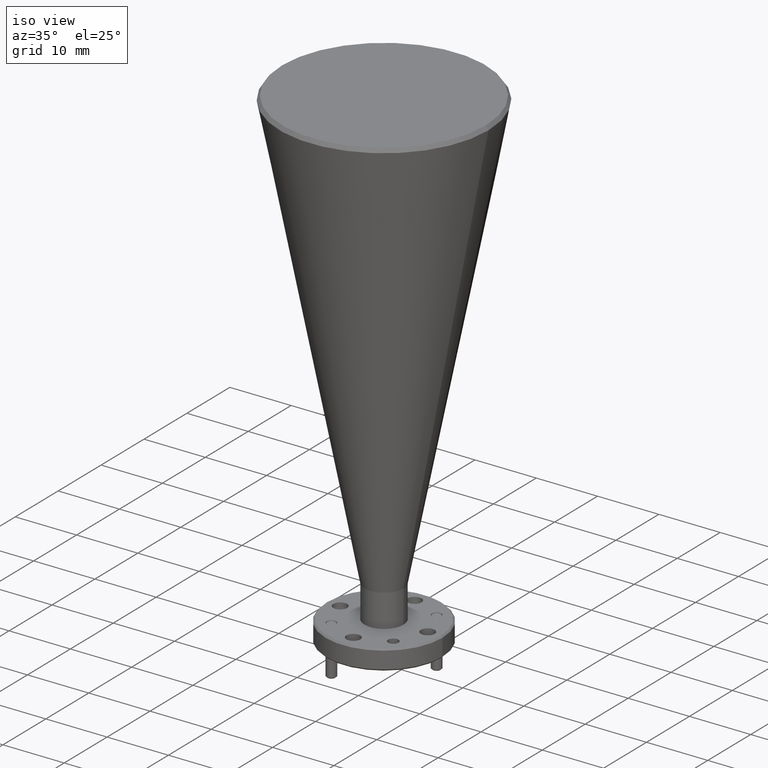
[diagram: clean part render]
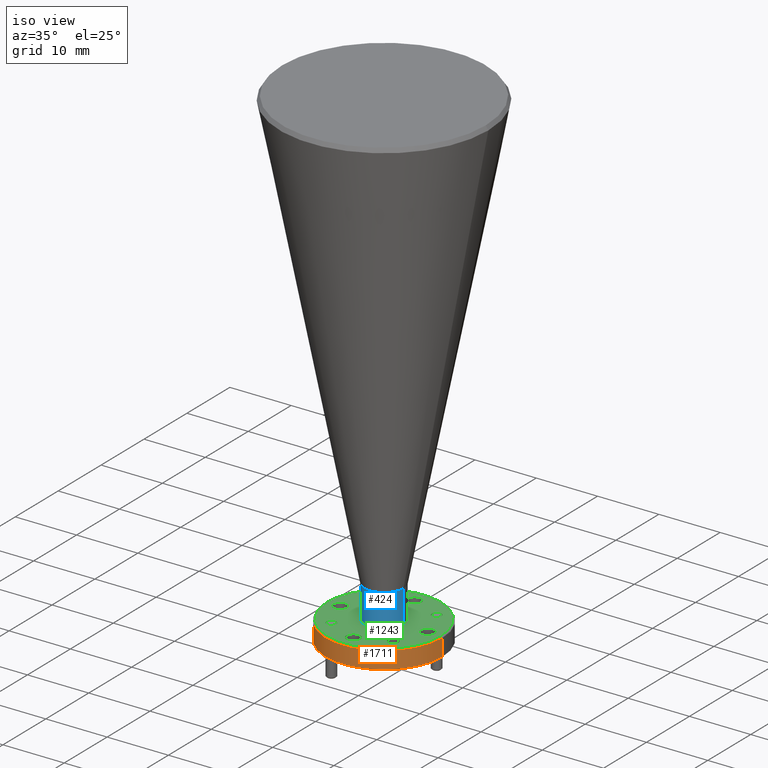
[diagram: same view with three faces highlighted in distinct colors, each labeled with its STEP entity id]
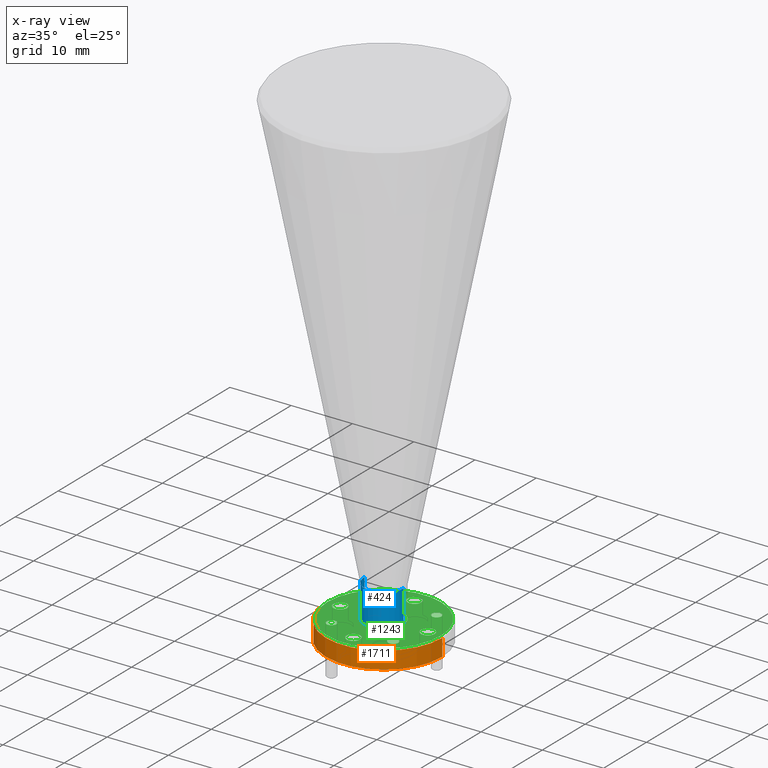
[diagram: x-ray of the same camera — body ghosted, the three highlighted faces saturated]
A machine part, iso view with three faces highlighted in distinct colors.
The next image is the same camera in x-ray (body ghosted, the three faces saturated) — at least one of them is partly hidden behind the body in this view.
Their STEP definitions:

[orange] entity #1711 — the highlighted cylindrical surface (partial cylindrical patch) has radius 9.525 mm, axis along (-0, -0, 1).
#64 = ORIENTED_EDGE ( 'NONE', *, *, #447, .T. ) ;
#85 = CARTESIAN_POINT ( 'NONE',  ( 0.8240414346720549300, 1.390276906475814300, -0.4061406525522079900 ) ) ;
#89 = AXIS2_PLACEMENT_3D ( 'NONE', #789, #1792, #1266 ) ;
#122 = CARTESIAN_POINT ( 'NONE',  ( 1.574041434672054800, 1.390276906475814300, 5.678405754474122900 ) ) ;
#166 = CARTESIAN_POINT ( 'NONE',  ( 1.574041434672054800, 1.390276906475814300, -0.5161406525522087600 ) ) ;
#168 = DIRECTION ( 'NONE',  ( -0.0000000000000000000, -0.0000000000000000000, 1.000000000000000000 ) ) ;
#174 = DIRECTION ( 'NONE',  ( -1.000000000000000000, 0.0000000000000000000, 0.0000000000000000000 ) ) ;
#200 = EDGE_CURVE ( 'NONE', #826, #555, #600, .T. ) ;
#221 = EDGE_CURVE ( 'NONE', #578, #2094, #323, .T. ) ;
#307 = CARTESIAN_POINT ( 'NONE',  ( 0.8240414346720549300, 1.390276906475814300, 5.678405754474122900 ) ) ;
#323 = LINE ( 'NONE', #307, #1478 ) ;
#396 = AXIS2_PLACEMENT_3D ( 'NONE', #965, #1289, #625 ) ;
#447 = EDGE_CURVE ( 'NONE', #578, #826, #1750, .T. ) ;
#555 = VERTEX_POINT ( 'NONE', #1328 ) ;
#578 = VERTEX_POINT ( 'NONE', #1311 ) ;
#600 = LINE ( 'NONE', #122, #1701 ) ;
#625 = DIRECTION ( 'NONE',  ( 1.000000000000000000, 0.0000000000000000000, 0.0000000000000000000 ) ) ;
#666 = CYLINDRICAL_SURFACE ( 'NONE', #89, 0.3749999999999999400 ) ;
#671 = AXIS2_PLACEMENT_3D ( 'NONE', #1134, #1608, #174 ) ;
#789 = CARTESIAN_POINT ( 'NONE',  ( 1.199041434672055000, 1.390276906475814300, 5.678405754474122900 ) ) ;
#822 = FACE_OUTER_BOUND ( 'NONE', #1214, .T. ) ;
#826 = VERTEX_POINT ( 'NONE', #166 ) ;
#879 = EDGE_CURVE ( 'NONE', #555, #2094, #1230, .T. ) ;
#925 = DIRECTION ( 'NONE',  ( -0.0000000000000000000, -0.0000000000000000000, 1.000000000000000000 ) ) ;
#932 = ORIENTED_EDGE ( 'NONE', *, *, #221, .F. ) ;
#965 = CARTESIAN_POINT ( 'NONE',  ( 1.199041434672055000, 1.390276906475814300, -0.5161406525522087600 ) ) ;
#1134 = CARTESIAN_POINT ( 'NONE',  ( 1.199041434672055000, 1.390276906475814300, -0.4061406525522079900 ) ) ;
#1212 = ORIENTED_EDGE ( 'NONE', *, *, #879, .T. ) ;
#1214 = EDGE_LOOP ( 'NONE', ( #932, #64, #1645, #1212 ) ) ;
#1230 = CIRCLE ( 'NONE', #671, 0.3749999999999999400 ) ;
#1266 = DIRECTION ( 'NONE',  ( 1.000000000000000000, 0.0000000000000000000, 0.0000000000000000000 ) ) ;
#1289 = DIRECTION ( 'NONE',  ( -0.0000000000000000000, -0.0000000000000000000, 1.000000000000000000 ) ) ;
#1311 = CARTESIAN_POINT ( 'NONE',  ( 0.8240414346720549300, 1.390276906475814300, -0.5161406525522087600 ) ) ;
#1328 = CARTESIAN_POINT ( 'NONE',  ( 1.574041434672054800, 1.390276906475814300, -0.4061406525522079900 ) ) ;
#1478 = VECTOR ( 'NONE', #168, 39.37007874015748100 ) ;
#1608 = DIRECTION ( 'NONE',  ( 0.0000000000000000000, 0.0000000000000000000, -1.000000000000000000 ) ) ;
#1645 = ORIENTED_EDGE ( 'NONE', *, *, #200, .T. ) ;
#1701 = VECTOR ( 'NONE', #925, 39.37007874015748100 ) ;
#1711 = ADVANCED_FACE ( 'NONE', ( #822 ), #666, .T. ) ;
#1750 = CIRCLE ( 'NONE', #396, 0.3749999999999999400 ) ;
#1792 = DIRECTION ( 'NONE',  ( -0.0000000000000000000, -0.0000000000000000000, 1.000000000000000000 ) ) ;
#2094 = VERTEX_POINT ( 'NONE', #85 ) ;

[blue] entity #424 — the highlighted cylindrical surface (edge-blend (fillet) strip) has radius 3.175 mm, axis along (-0, -0, 1).
#24 = CARTESIAN_POINT ( 'NONE',  ( 1.324041434672054800, 1.390276906475814300, 5.678405754474122900 ) ) ;
#54 = ORIENTED_EDGE ( 'NONE', *, *, #1394, .T. ) ;
#67 = DIRECTION ( 'NONE',  ( 1.000000000000000000, 0.0000000000000000000, 0.0000000000000000000 ) ) ;
#99 = CIRCLE ( 'NONE', #1849, 0.1249999999999999000 ) ;
#338 = DIRECTION ( 'NONE',  ( 1.000000000000000000, 0.0000000000000000000, 0.0000000000000000000 ) ) ;
#341 = CARTESIAN_POINT ( 'NONE',  ( 1.074041434672054800, 1.390276906475814300, -0.3961406525522088700 ) ) ;
#424 = ADVANCED_FACE ( 'NONE', ( #442 ), #1003, .T. ) ;
#438 = CARTESIAN_POINT ( 'NONE',  ( 1.199041434672055000, 1.390276906475814300, -0.1856453613359826100 ) ) ;
#442 = FACE_OUTER_BOUND ( 'NONE', #1088, .T. ) ;
#468 = VERTEX_POINT ( 'NONE', #1967 ) ;
#593 = ORIENTED_EDGE ( 'NONE', *, *, #1181, .F. ) ;
#608 = VERTEX_POINT ( 'NONE', #341 ) ;
#657 = CARTESIAN_POINT ( 'NONE',  ( 1.324041434672054800, 1.390276906475814300, -0.1856453613359826100 ) ) ;
#705 = DIRECTION ( 'NONE',  ( -0.0000000000000000000, -0.0000000000000000000, 1.000000000000000000 ) ) ;
#760 = EDGE_CURVE ( 'NONE', #608, #1899, #1030, .T. ) ;
#806 = VECTOR ( 'NONE', #1924, 39.37007874015748100 ) ;
#845 = VECTOR ( 'NONE', #1156, 39.37007874015748100 ) ;
#981 = AXIS2_PLACEMENT_3D ( 'NONE', #1686, #705, #67 ) ;
#1003 = CYLINDRICAL_SURFACE ( 'NONE', #981, 0.1249999999999999000 ) ;
#1030 = LINE ( 'NONE', #1418, #806 ) ;
#1049 = CIRCLE ( 'NONE', #1659, 0.1249999999999999000 ) ;
#1088 = EDGE_LOOP ( 'NONE', ( #1762, #54, #1111, #593 ) ) ;
#1111 = ORIENTED_EDGE ( 'NONE', *, *, #1877, .T. ) ;
#1156 = DIRECTION ( 'NONE',  ( -0.0000000000000000000, -0.0000000000000000000, 1.000000000000000000 ) ) ;
#1181 = EDGE_CURVE ( 'NONE', #1899, #1895, #1049, .T. ) ;
#1394 = EDGE_CURVE ( 'NONE', #608, #468, #99, .T. ) ;
#1418 = CARTESIAN_POINT ( 'NONE',  ( 1.074041434672054800, 1.390276906475814300, 5.678405754474122900 ) ) ;
#1577 = DIRECTION ( 'NONE',  ( -0.0000000000000000000, -0.0000000000000000000, 1.000000000000000000 ) ) ;
#1633 = DIRECTION ( 'NONE',  ( -0.0000000000000000000, -0.0000000000000000000, 1.000000000000000000 ) ) ;
#1659 = AXIS2_PLACEMENT_3D ( 'NONE', #438, #1577, #1753 ) ;
#1686 = CARTESIAN_POINT ( 'NONE',  ( 1.199041434672055000, 1.390276906475814300, 5.678405754474122900 ) ) ;
#1713 = LINE ( 'NONE', #24, #845 ) ;
#1753 = DIRECTION ( 'NONE',  ( 1.000000000000000000, 0.0000000000000000000, 0.0000000000000000000 ) ) ;
#1762 = ORIENTED_EDGE ( 'NONE', *, *, #760, .F. ) ;
#1767 = CARTESIAN_POINT ( 'NONE',  ( 1.199041434672055000, 1.390276906475814300, -0.3961406525522088700 ) ) ;
#1822 = CARTESIAN_POINT ( 'NONE',  ( 1.074041434672054800, 1.390276906475814300, -0.1856453613359826100 ) ) ;
#1849 = AXIS2_PLACEMENT_3D ( 'NONE', #1767, #1633, #338 ) ;
#1877 = EDGE_CURVE ( 'NONE', #468, #1895, #1713, .T. ) ;
#1895 = VERTEX_POINT ( 'NONE', #657 ) ;
#1899 = VERTEX_POINT ( 'NONE', #1822 ) ;
#1924 = DIRECTION ( 'NONE',  ( -0.0000000000000000000, -0.0000000000000000000, 1.000000000000000000 ) ) ;
#1967 = CARTESIAN_POINT ( 'NONE',  ( 1.324041434672054800, 1.390276906475814300, -0.3961406525522088700 ) ) ;

[green] entity #1243 — the highlighted planar face has unit normal (0, 0, -1).
#2 = CARTESIAN_POINT ( 'NONE',  ( 1.199041434672055000, 1.109026906475814300, -0.3961406525522088700 ) ) ;
#4 = VERTEX_POINT ( 'NONE', #2055 ) ;
#14 = ORIENTED_EDGE ( 'NONE', *, *, #1326, .T. ) ;
#42 = CARTESIAN_POINT ( 'NONE',  ( 1.480291434672055000, 1.390276906475814300, -0.3961406525522088700 ) ) ;
#77 = CIRCLE ( 'NONE', #317, 0.03350000000000006400 ) ;
#83 = EDGE_LOOP ( 'NONE', ( #1604, #228 ) ) ;
#84 = VERTEX_POINT ( 'NONE', #819 ) ;
#95 = CARTESIAN_POINT ( 'NONE',  ( 1.367165216880771500, 1.589150688684530800, -0.3961406525522088700 ) ) ;
#99 = CIRCLE ( 'NONE', #1849, 0.1249999999999999000 ) ;
#132 = PLANE ( 'NONE',  #642 ) ;
#178 = DIRECTION ( 'NONE',  ( 0.0000000000000000000, 0.0000000000000000000, -1.000000000000000000 ) ) ;
#212 = CARTESIAN_POINT ( 'NONE',  ( 1.564041434672055500, 1.390276906475814300, -0.3961406525522088700 ) ) ;
#214 = ORIENTED_EDGE ( 'NONE', *, *, #1587, .T. ) ;
#217 = CARTESIAN_POINT ( 'NONE',  ( 0.9622914346720546900, 1.390276906475814300, -0.3961406525522088700 ) ) ;
#228 = ORIENTED_EDGE ( 'NONE', *, *, #917, .T. ) ;
#232 = AXIS2_PLACEMENT_3D ( 'NONE', #1333, #2009, #1002 ) ;
#236 = CARTESIAN_POINT ( 'NONE',  ( 0.8340414346720542700, 1.390276906475814300, -0.3961406525522088700 ) ) ;
#244 = FACE_BOUND ( 'NONE', #758, .T. ) ;
#256 = VERTEX_POINT ( 'NONE', #1467 ) ;
#257 = VERTEX_POINT ( 'NONE', #1136 ) ;
#264 = AXIS2_PLACEMENT_3D ( 'NONE', #1571, #1925, #312 ) ;
#288 = CIRCLE ( 'NONE', #1860, 0.03074999999999993700 ) ;
#297 = FACE_OUTER_BOUND ( 'NONE', #787, .T. ) ;
#312 = DIRECTION ( 'NONE',  ( -1.000000000000000000, 0.0000000000000000000, 0.0000000000000000000 ) ) ;
#317 = AXIS2_PLACEMENT_3D ( 'NONE', #1454, #1955, #1770 ) ;
#337 = CIRCLE ( 'NONE', #1063, 0.04449999999999975500 ) ;
#338 = DIRECTION ( 'NONE',  ( 1.000000000000000000, 0.0000000000000000000, 0.0000000000000000000 ) ) ;
#341 = CARTESIAN_POINT ( 'NONE',  ( 1.074041434672054800, 1.390276906475814300, -0.3961406525522088700 ) ) ;
#360 = CARTESIAN_POINT ( 'NONE',  ( 1.480291434672055000, 1.390276906475814300, -0.3961406525522088700 ) ) ;
#364 = CARTESIAN_POINT ( 'NONE',  ( 1.435791434672055300, 1.390276906475814300, -0.3961406525522088700 ) ) ;
#365 = AXIS2_PLACEMENT_3D ( 'NONE', #1363, #1844, #694 ) ;
#380 = EDGE_CURVE ( 'NONE', #1153, #1984, #1572, .T. ) ;
#386 = CARTESIAN_POINT ( 'NONE',  ( 1.243541434672054800, 1.109026906475814300, -0.3961406525522088700 ) ) ;
#393 = CARTESIAN_POINT ( 'NONE',  ( 0.9694176524633384400, 1.191403124267097700, -0.3961406525522088700 ) ) ;
#395 = CIRCLE ( 'NONE', #1441, 0.04449999999999975500 ) ;
#404 = DIRECTION ( 'NONE',  ( -1.000000000000000000, 0.0000000000000000000, 0.0000000000000000000 ) ) ;
#408 = EDGE_CURVE ( 'NONE', #257, #256, #543, .T. ) ;
#412 = AXIS2_PLACEMENT_3D ( 'NONE', #934, #482, #1763 ) ;
#416 = ORIENTED_EDGE ( 'NONE', *, *, #1926, .F. ) ;
#441 = EDGE_CURVE ( 'NONE', #1984, #1153, #1859, .T. ) ;
#457 = DIRECTION ( 'NONE',  ( 0.0000000000000000000, 0.0000000000000000000, -1.000000000000000000 ) ) ;
#464 = DIRECTION ( 'NONE',  ( -1.000000000000000000, 0.0000000000000000000, 0.0000000000000000000 ) ) ;
#468 = VERTEX_POINT ( 'NONE', #1967 ) ;
#477 = ORIENTED_EDGE ( 'NONE', *, *, #408, .T. ) ;
#482 = DIRECTION ( 'NONE',  ( 0.0000000000000000000, 0.0000000000000000000, -1.000000000000000000 ) ) ;
#501 = ORIENTED_EDGE ( 'NONE', *, *, #1127, .T. ) ;
#514 = DIRECTION ( 'NONE',  ( 0.0000000000000000000, 0.0000000000000000000, -1.000000000000000000 ) ) ;
#529 = EDGE_LOOP ( 'NONE', ( #1295, #14 ) ) ;
#541 = CIRCLE ( 'NONE', #2102, 0.04449999999999975500 ) ;
#543 = CIRCLE ( 'NONE', #264, 0.03350000000000006400 ) ;
#579 = EDGE_LOOP ( 'NONE', ( #1583, #1480 ) ) ;
#594 = CIRCLE ( 'NONE', #1916, 0.03349999999999993300 ) ;
#606 = ORIENTED_EDGE ( 'NONE', *, *, #847, .T. ) ;
#608 = VERTEX_POINT ( 'NONE', #341 ) ;
#639 = CARTESIAN_POINT ( 'NONE',  ( 1.243541434672054800, 1.671526906475814300, -0.3961406525522088700 ) ) ;
#642 = AXIS2_PLACEMENT_3D ( 'NONE', #1259, #748, #1401 ) ;
#646 = FACE_BOUND ( 'NONE', #733, .T. ) ;
#648 = DIRECTION ( 'NONE',  ( -1.000000000000000000, 0.0000000000000000000, 0.0000000000000000000 ) ) ;
#658 = VERTEX_POINT ( 'NONE', #1900 ) ;
#667 = EDGE_CURVE ( 'NONE', #1319, #877, #1500, .T. ) ;
#674 = FACE_BOUND ( 'NONE', #579, .T. ) ;
#683 = ORIENTED_EDGE ( 'NONE', *, *, #1765, .T. ) ;
#690 = CARTESIAN_POINT ( 'NONE',  ( 1.000167652463338300, 1.191403124267097700, -0.3961406525522088700 ) ) ;
#694 = DIRECTION ( 'NONE',  ( -1.000000000000000000, 0.0000000000000000000, 0.0000000000000000000 ) ) ;
#701 = AXIS2_PLACEMENT_3D ( 'NONE', #690, #178, #1838 ) ;
#733 = EDGE_LOOP ( 'NONE', ( #1513, #1005 ) ) ;
#734 = DIRECTION ( 'NONE',  ( -1.000000000000000000, 0.0000000000000000000, 0.0000000000000000000 ) ) ;
#743 = CARTESIAN_POINT ( 'NONE',  ( 1.030917652463338300, 1.191403124267097700, -0.3961406525522088700 ) ) ;
#748 = DIRECTION ( 'NONE',  ( 0.0000000000000000000, 0.0000000000000000000, -1.000000000000000000 ) ) ;
#758 = EDGE_LOOP ( 'NONE', ( #501, #839 ) ) ;
#777 = FACE_BOUND ( 'NONE', #1893, .T. ) ;
#783 = CARTESIAN_POINT ( 'NONE',  ( 1.524791434672054800, 1.390276906475814300, -0.3961406525522088700 ) ) ;
#787 = EDGE_LOOP ( 'NONE', ( #810, #861 ) ) ;
#810 = ORIENTED_EDGE ( 'NONE', *, *, #380, .T. ) ;
#819 = CARTESIAN_POINT ( 'NONE',  ( 0.8732914346720551700, 1.390276906475814300, -0.3961406525522088700 ) ) ;
#821 = DIRECTION ( 'NONE',  ( -0.0000000000000000000, -0.0000000000000000000, 1.000000000000000000 ) ) ;
#824 = AXIS2_PLACEMENT_3D ( 'NONE', #2, #1483, #1157 ) ;
#839 = ORIENTED_EDGE ( 'NONE', *, *, #2007, .T. ) ;
#847 = EDGE_CURVE ( 'NONE', #256, #257, #77, .T. ) ;
#848 = DIRECTION ( 'NONE',  ( 0.0000000000000000000, 0.0000000000000000000, -1.000000000000000000 ) ) ;
#860 = DIRECTION ( 'NONE',  ( 0.0000000000000000000, 0.0000000000000000000, -1.000000000000000000 ) ) ;
#861 = ORIENTED_EDGE ( 'NONE', *, *, #441, .T. ) ;
#877 = VERTEX_POINT ( 'NONE', #639 ) ;
#891 = CARTESIAN_POINT ( 'NONE',  ( 1.199041434672055000, 1.671526906475814300, -0.3961406525522088700 ) ) ;
#895 = VERTEX_POINT ( 'NONE', #783 ) ;
#917 = EDGE_CURVE ( 'NONE', #1086, #1898, #1942, .T. ) ;
#934 = CARTESIAN_POINT ( 'NONE',  ( 1.000167652463338300, 1.589150688684530800, -0.3961406525522088700 ) ) ;
#1002 = DIRECTION ( 'NONE',  ( -1.000000000000000000, 0.0000000000000000000, 0.0000000000000000000 ) ) ;
#1005 = ORIENTED_EDGE ( 'NONE', *, *, #1852, .T. ) ;
#1032 = EDGE_CURVE ( 'NONE', #1642, #895, #2040, .T. ) ;
#1033 = CARTESIAN_POINT ( 'NONE',  ( 0.9177914346720549300, 1.390276906475814300, -0.3961406525522088700 ) ) ;
#1063 = AXIS2_PLACEMENT_3D ( 'NONE', #42, #1314, #1628 ) ;
#1073 = VERTEX_POINT ( 'NONE', #95 ) ;
#1086 = VERTEX_POINT ( 'NONE', #386 ) ;
#1114 = VERTEX_POINT ( 'NONE', #743 ) ;
#1117 = CARTESIAN_POINT ( 'NONE',  ( 1.000167652463338300, 1.589150688684530800, -0.3961406525522088700 ) ) ;
#1127 = EDGE_CURVE ( 'NONE', #84, #1627, #395, .T. ) ;
#1131 = CARTESIAN_POINT ( 'NONE',  ( 1.154541434672055300, 1.671526906475814300, -0.3961406525522088700 ) ) ;
#1135 = AXIS2_PLACEMENT_3D ( 'NONE', #1448, #457, #464 ) ;
#1136 = CARTESIAN_POINT ( 'NONE',  ( 1.431415216880771400, 1.191403124267097700, -0.3961406525522088700 ) ) ;
#1152 = CIRCLE ( 'NONE', #1644, 0.04449999999999975500 ) ;
#1153 = VERTEX_POINT ( 'NONE', #236 ) ;
#1157 = DIRECTION ( 'NONE',  ( -1.000000000000000000, 0.0000000000000000000, 0.0000000000000000000 ) ) ;
#1169 = DIRECTION ( 'NONE',  ( -1.000000000000000000, 0.0000000000000000000, 0.0000000000000000000 ) ) ;
#1170 = VERTEX_POINT ( 'NONE', #393 ) ;
#1182 = CARTESIAN_POINT ( 'NONE',  ( 1.428665216880771400, 1.589150688684530800, -0.3961406525522088700 ) ) ;
#1196 = DIRECTION ( 'NONE',  ( 0.0000000000000000000, 0.0000000000000000000, -1.000000000000000000 ) ) ;
#1223 = DIRECTION ( 'NONE',  ( 0.0000000000000000000, 0.0000000000000000000, -1.000000000000000000 ) ) ;
#1243 = ADVANCED_FACE ( 'NONE', ( #297, #1646, #1989, #777, #1570, #674, #244, #1255, #646, #1881 ), #132, .F. ) ;
#1255 = FACE_BOUND ( 'NONE', #83, .T. ) ;
#1259 = CARTESIAN_POINT ( 'NONE',  ( 1.199041434672055000, 1.515276906475814300, -0.3961406525522088700 ) ) ;
#1262 = EDGE_CURVE ( 'NONE', #877, #1319, #541, .T. ) ;
#1269 = DIRECTION ( 'NONE',  ( -1.000000000000000000, 0.0000000000000000000, 0.0000000000000000000 ) ) ;
#1295 = ORIENTED_EDGE ( 'NONE', *, *, #2021, .T. ) ;
#1296 = EDGE_CURVE ( 'NONE', #1898, #1086, #1152, .T. ) ;
#1304 = CIRCLE ( 'NONE', #2015, 0.1249999999999999000 ) ;
#1309 = CIRCLE ( 'NONE', #701, 0.03074999999999993700 ) ;
#1314 = DIRECTION ( 'NONE',  ( 0.0000000000000000000, 0.0000000000000000000, -1.000000000000000000 ) ) ;
#1319 = VERTEX_POINT ( 'NONE', #1131 ) ;
#1320 = ORIENTED_EDGE ( 'NONE', *, *, #1380, .T. ) ;
#1321 = CARTESIAN_POINT ( 'NONE',  ( 1.154541434672055300, 1.109026906475814300, -0.3961406525522088700 ) ) ;
#1326 = EDGE_CURVE ( 'NONE', #1580, #1073, #1805, .T. ) ;
#1333 = CARTESIAN_POINT ( 'NONE',  ( 1.000167652463338300, 1.191403124267097700, -0.3961406525522088700 ) ) ;
#1352 = AXIS2_PLACEMENT_3D ( 'NONE', #1520, #848, #1529 ) ;
#1363 = CARTESIAN_POINT ( 'NONE',  ( 1.199041434672055000, 1.390276906475814300, -0.3961406525522088700 ) ) ;
#1365 = DIRECTION ( 'NONE',  ( -1.000000000000000000, 0.0000000000000000000, 0.0000000000000000000 ) ) ;
#1380 = EDGE_CURVE ( 'NONE', #658, #4, #594, .T. ) ;
#1391 = CARTESIAN_POINT ( 'NONE',  ( 1.199041434672055000, 1.390276906475814300, -0.3961406525522088700 ) ) ;
#1394 = EDGE_CURVE ( 'NONE', #608, #468, #99, .T. ) ;
#1401 = DIRECTION ( 'NONE',  ( -1.000000000000000000, 0.0000000000000000000, -0.0000000000000000000 ) ) ;
#1409 = CIRCLE ( 'NONE', #412, 0.03349999999999993300 ) ;
#1440 = DIRECTION ( 'NONE',  ( 0.0000000000000000000, 0.0000000000000000000, -1.000000000000000000 ) ) ;
#1441 = AXIS2_PLACEMENT_3D ( 'NONE', #1033, #1196, #1709 ) ;
#1448 = CARTESIAN_POINT ( 'NONE',  ( 1.397915216880771600, 1.589150688684530800, -0.3961406525522088700 ) ) ;
#1454 = CARTESIAN_POINT ( 'NONE',  ( 1.397915216880771600, 1.191403124267097700, -0.3961406525522088700 ) ) ;
#1467 = CARTESIAN_POINT ( 'NONE',  ( 1.364415216880771500, 1.191403124267097700, -0.3961406525522088700 ) ) ;
#1477 = CARTESIAN_POINT ( 'NONE',  ( 1.199041434672055000, 1.390276906475814300, -0.3961406525522088700 ) ) ;
#1480 = ORIENTED_EDGE ( 'NONE', *, *, #1262, .T. ) ;
#1483 = DIRECTION ( 'NONE',  ( 0.0000000000000000000, 0.0000000000000000000, -1.000000000000000000 ) ) ;
#1491 = EDGE_CURVE ( 'NONE', #1170, #1114, #1309, .T. ) ;
#1492 = AXIS2_PLACEMENT_3D ( 'NONE', #1391, #2059, #734 ) ;
#1500 = CIRCLE ( 'NONE', #1856, 0.04449999999999975500 ) ;
#1513 = ORIENTED_EDGE ( 'NONE', *, *, #1032, .T. ) ;
#1520 = CARTESIAN_POINT ( 'NONE',  ( 0.9177914346720549300, 1.390276906475814300, -0.3961406525522088700 ) ) ;
#1523 = ORIENTED_EDGE ( 'NONE', *, *, #1394, .F. ) ;
#1529 = DIRECTION ( 'NONE',  ( -1.000000000000000000, 0.0000000000000000000, 0.0000000000000000000 ) ) ;
#1543 = EDGE_LOOP ( 'NONE', ( #606, #477 ) ) ;
#1554 = EDGE_LOOP ( 'NONE', ( #416, #1523 ) ) ;
#1570 = FACE_BOUND ( 'NONE', #1543, .T. ) ;
#1571 = CARTESIAN_POINT ( 'NONE',  ( 1.397915216880771600, 1.191403124267097700, -0.3961406525522088700 ) ) ;
#1572 = CIRCLE ( 'NONE', #1492, 0.3650000000000006000 ) ;
#1580 = VERTEX_POINT ( 'NONE', #1182 ) ;
#1583 = ORIENTED_EDGE ( 'NONE', *, *, #667, .T. ) ;
#1587 = EDGE_CURVE ( 'NONE', #1114, #1170, #1690, .T. ) ;
#1593 = DIRECTION ( 'NONE',  ( -1.000000000000000000, 0.0000000000000000000, 0.0000000000000000000 ) ) ;
#1604 = ORIENTED_EDGE ( 'NONE', *, *, #1296, .T. ) ;
#1615 = DIRECTION ( 'NONE',  ( 0.0000000000000000000, 0.0000000000000000000, -1.000000000000000000 ) ) ;
#1627 = VERTEX_POINT ( 'NONE', #217 ) ;
#1628 = DIRECTION ( 'NONE',  ( -1.000000000000000000, 0.0000000000000000000, 0.0000000000000000000 ) ) ;
#1633 = DIRECTION ( 'NONE',  ( -0.0000000000000000000, -0.0000000000000000000, 1.000000000000000000 ) ) ;
#1642 = VERTEX_POINT ( 'NONE', #364 ) ;
#1644 = AXIS2_PLACEMENT_3D ( 'NONE', #2100, #1440, #648 ) ;
#1646 = FACE_BOUND ( 'NONE', #529, .T. ) ;
#1669 = EDGE_LOOP ( 'NONE', ( #2099, #214 ) ) ;
#1689 = CIRCLE ( 'NONE', #1352, 0.04449999999999975500 ) ;
#1690 = CIRCLE ( 'NONE', #232, 0.03074999999999993700 ) ;
#1709 = DIRECTION ( 'NONE',  ( -1.000000000000000000, 0.0000000000000000000, 0.0000000000000000000 ) ) ;
#1744 = CARTESIAN_POINT ( 'NONE',  ( 1.199041434672055000, 1.671526906475814300, -0.3961406525522088700 ) ) ;
#1763 = DIRECTION ( 'NONE',  ( -1.000000000000000000, 0.0000000000000000000, 0.0000000000000000000 ) ) ;
#1765 = EDGE_CURVE ( 'NONE', #4, #658, #1409, .T. ) ;
#1767 = CARTESIAN_POINT ( 'NONE',  ( 1.199041434672055000, 1.390276906475814300, -0.3961406525522088700 ) ) ;
#1770 = DIRECTION ( 'NONE',  ( -1.000000000000000000, 0.0000000000000000000, 0.0000000000000000000 ) ) ;
#1805 = CIRCLE ( 'NONE', #1135, 0.03074999999999993700 ) ;
#1838 = DIRECTION ( 'NONE',  ( -1.000000000000000000, 0.0000000000000000000, 0.0000000000000000000 ) ) ;
#1844 = DIRECTION ( 'NONE',  ( -0.0000000000000000000, -0.0000000000000000000, 1.000000000000000000 ) ) ;
#1845 = CARTESIAN_POINT ( 'NONE',  ( 1.397915216880771600, 1.589150688684530800, -0.3961406525522088700 ) ) ;
#1849 = AXIS2_PLACEMENT_3D ( 'NONE', #1767, #1633, #338 ) ;
#1852 = EDGE_CURVE ( 'NONE', #895, #1642, #337, .T. ) ;
#1856 = AXIS2_PLACEMENT_3D ( 'NONE', #891, #1223, #404 ) ;
#1859 = CIRCLE ( 'NONE', #365, 0.3650000000000006000 ) ;
#1860 = AXIS2_PLACEMENT_3D ( 'NONE', #1845, #860, #1365 ) ;
#1881 = FACE_BOUND ( 'NONE', #1554, .T. ) ;
#1893 = EDGE_LOOP ( 'NONE', ( #1320, #683 ) ) ;
#1898 = VERTEX_POINT ( 'NONE', #1321 ) ;
#1900 = CARTESIAN_POINT ( 'NONE',  ( 0.9666676524633384100, 1.589150688684530800, -0.3961406525522088700 ) ) ;
#1916 = AXIS2_PLACEMENT_3D ( 'NONE', #1117, #1615, #1269 ) ;
#1919 = DIRECTION ( 'NONE',  ( 0.0000000000000000000, 0.0000000000000000000, -1.000000000000000000 ) ) ;
#1925 = DIRECTION ( 'NONE',  ( 0.0000000000000000000, 0.0000000000000000000, -1.000000000000000000 ) ) ;
#1926 = EDGE_CURVE ( 'NONE', #468, #608, #1304, .T. ) ;
#1942 = CIRCLE ( 'NONE', #824, 0.04449999999999975500 ) ;
#1955 = DIRECTION ( 'NONE',  ( 0.0000000000000000000, 0.0000000000000000000, -1.000000000000000000 ) ) ;
#1967 = CARTESIAN_POINT ( 'NONE',  ( 1.324041434672054800, 1.390276906475814300, -0.3961406525522088700 ) ) ;
#1984 = VERTEX_POINT ( 'NONE', #212 ) ;
#1986 = DIRECTION ( 'NONE',  ( 1.000000000000000000, 0.0000000000000000000, 0.0000000000000000000 ) ) ;
#1989 = FACE_BOUND ( 'NONE', #1669, .T. ) ;
#2007 = EDGE_CURVE ( 'NONE', #1627, #84, #1689, .T. ) ;
#2009 = DIRECTION ( 'NONE',  ( 0.0000000000000000000, 0.0000000000000000000, -1.000000000000000000 ) ) ;
#2015 = AXIS2_PLACEMENT_3D ( 'NONE', #1477, #821, #1986 ) ;
#2021 = EDGE_CURVE ( 'NONE', #1073, #1580, #288, .T. ) ;
#2036 = AXIS2_PLACEMENT_3D ( 'NONE', #360, #514, #1169 ) ;
#2040 = CIRCLE ( 'NONE', #2036, 0.04449999999999975500 ) ;
#2055 = CARTESIAN_POINT ( 'NONE',  ( 1.033667652463338400, 1.589150688684530800, -0.3961406525522088700 ) ) ;
#2059 = DIRECTION ( 'NONE',  ( -0.0000000000000000000, -0.0000000000000000000, 1.000000000000000000 ) ) ;
#2099 = ORIENTED_EDGE ( 'NONE', *, *, #1491, .T. ) ;
#2100 = CARTESIAN_POINT ( 'NONE',  ( 1.199041434672055000, 1.109026906475814300, -0.3961406525522088700 ) ) ;
#2102 = AXIS2_PLACEMENT_3D ( 'NONE', #1744, #1919, #1593 ) ;